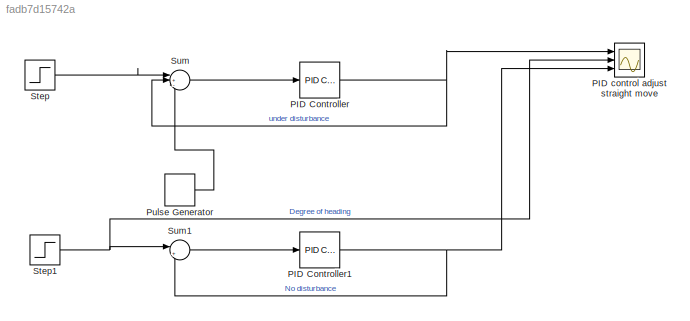
MODEL slx_fadb7d15742a
KIND model
CONFIG AbsTol = auto
CONFIG EnableMultiTasking = off
CONFIG FixedStep = auto
CONFIG MaxStep = auto
CONFIG MinStep = auto
CONFIG RelTol = 1e-3
CONFIG SampleTimeConstraint = Unconstrained
CONFIG SolverName = VariableStepAuto
CONFIG StartTime = 0.0
CONFIG StopTime = 30
BLOCK [Reference] PID Controller  REF=slpidlib/PID Controller
  Ports = [1, 1]
  SourceBlock = slpidlib/PID Controller
  SourceProductBaseCode = SL
  SourceType = PID 1dof
BLOCK [Reference] PID Controller1  REF=slpidlib/PID Controller
  Ports = [1, 1]
  SourceBlock = slpidlib/PID Controller
  SourceProductBaseCode = SL
  SourceType = PID 1dof
BLOCK [Scope] PID control adjust straight move
  Floating = off
  NumInputPorts = 3
  Ports = [3]
  ScopeSpecificationString = Simulink.scopes.TimeScopeBlockCfg('CurrentConfiguration', extmgr.ConfigurationSet(extmgr.Configuration('Core','General UI',true,'FigureColor',[1 1 1]),extmgr.Configuration('Core','Source UI',true),extmgr.Configuration('Sources','WiredSimulink',true),extmgr.Configuration('Visuals','Time Domain',true,'SerializedDisplays',{struct('MinYLimReal','8.68386','MaxYLimReal','10.47514','YLabelReal','','MinYL...<+1844ch>
BLOCK [DiscretePulseGenerator] Pulse Generator
  Period = 10
  PhaseDelay = 4
  Ports = [0, 1]
  PulseType = Time based
  PulseWidth = 2
  VectorParams1D = off
BLOCK [Step] Step
  After = 10
  Before = 10
  SampleTime = 0
BLOCK [Step] Step1
  After = 10
  Before = 10
  SampleTime = 0
BLOCK [Sum] Sum
  Inputs = |+--
  Ports = [3, 1]
BLOCK [Sum] Sum1
  Inputs = |+-
  Ports = [2, 1]
NET PID Controller1:1 -> PID control adjust straight move:3, Sum1:2
NET PID Controller:1 -> PID control adjust straight move:1, Sum:2
LINE Pulse Generator:1 -> Sum:3
NET Step1:1 -> PID control adjust straight move:2, Sum1:1
LINE Step:1 -> Sum:1
LINE Sum1:1 -> PID Controller1:1
LINE Sum:1 -> PID Controller:1
note: NET lines group one-source signal fan-out (src -> all destinations, sorted); 1:1 wires keep LINE
